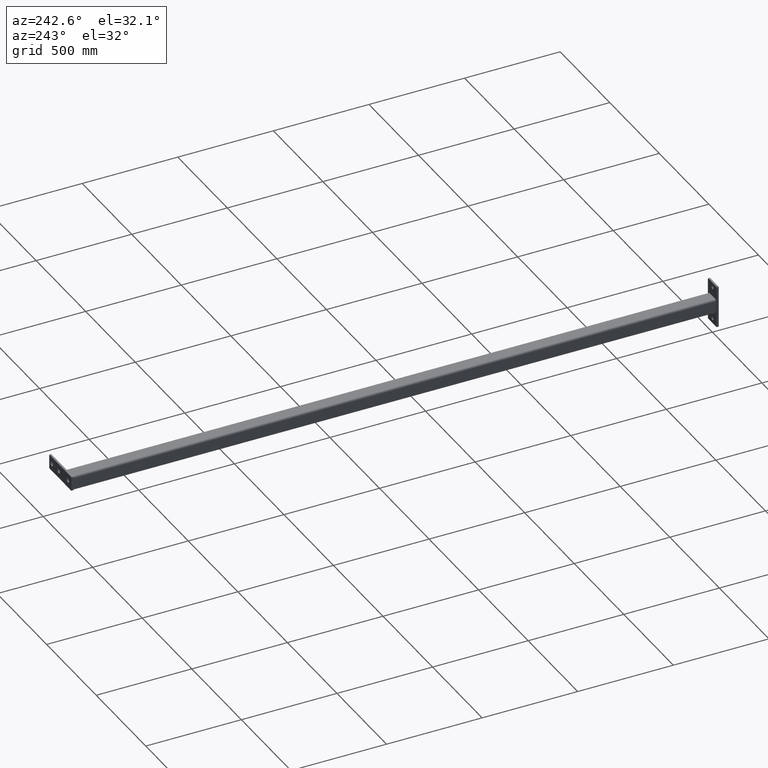
[diagram: clean part render]
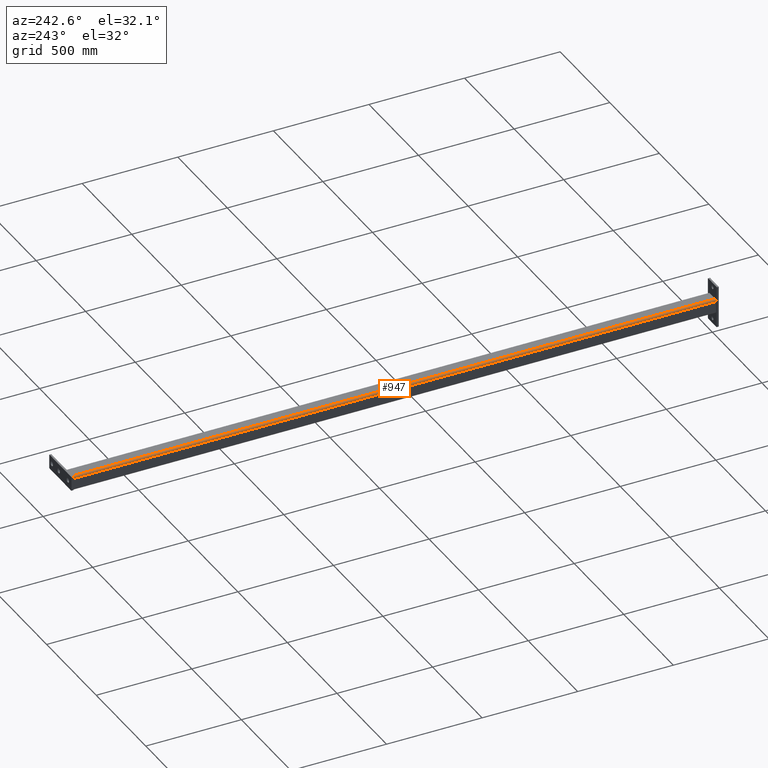
[diagram: same view with one face highlighted and labeled with its STEP entity id]
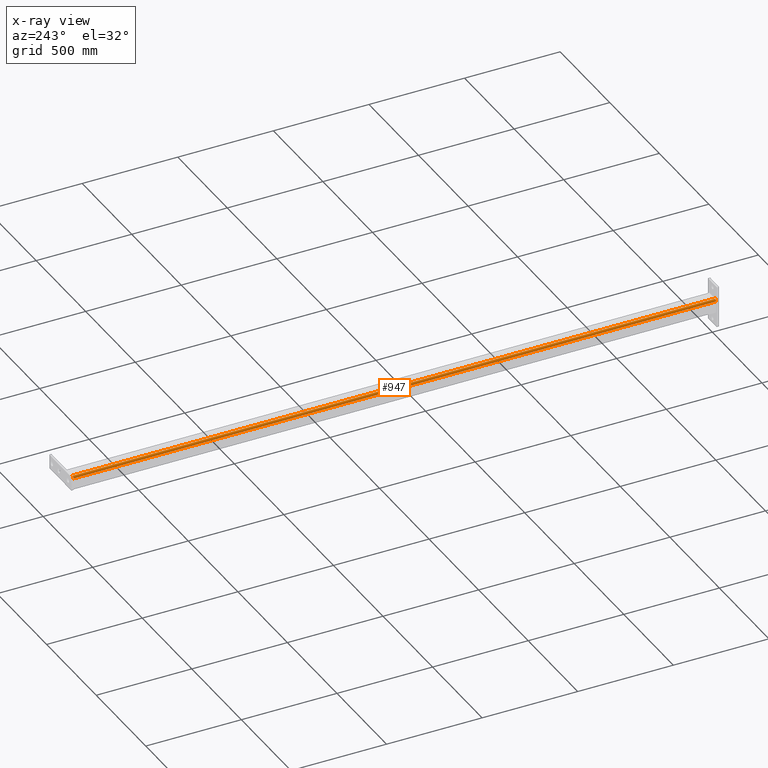
[diagram: x-ray of the same camera — body ghosted, the highlighted face saturated]
A machine part, auxiliary view. The second image highlights one B-rep face of the part: STEP entity #947.
The next image is the same camera in x-ray: the body ghosted, the highlighted face saturated — about 0% of this face is hidden behind the body in this view.
In plain terms, the highlighted cylindrical surface (edge-blend (fillet) strip) has radius 10 mm, axis along (0, 1, 0).
Its self-contained STEP definition (entity closure, byte-faithful):
#38 = VERTEX_POINT ( 'NONE', #2303 ) ;
#72 = CIRCLE ( 'NONE', #1617, 10.00000000000000533 ) ;
#115 = ORIENTED_EDGE ( 'NONE', *, *, #2141, .F. ) ;
#175 = VECTOR ( 'NONE', #994, 1000.000000000000000 ) ;
#179 = ORIENTED_EDGE ( 'NONE', *, *, #2188, .F. ) ;
#341 = CARTESIAN_POINT ( 'NONE',  ( 1680.500000000000000, -27.49999999999937117, -37.50000000000012079 ) ) ;
#529 = CARTESIAN_POINT ( 'NONE',  ( 1680.500000000000000, -27.49999999999937828, -27.50000000000011369 ) ) ;
#553 = DIRECTION ( 'NONE',  ( 0.000000000000000000, 1.000000000000000000, 0.000000000000000000 ) ) ;
#712 = EDGE_LOOP ( 'NONE', ( #2133, #115, #179, #1821 ) ) ;
#744 = DIRECTION ( 'NONE',  ( -1.000000000000000000, -3.061616997868382648E-16, 0.000000000000000000 ) ) ;
#912 = AXIS2_PLACEMENT_3D ( 'NONE', #939, #1307, #553 ) ;
#926 = CYLINDRICAL_SURFACE ( 'NONE', #2160, 10.00000000000000533 ) ;
#929 = DIRECTION ( 'NONE',  ( 1.000000000000000000, 3.061616997868382648E-16, -0.000000000000000000 ) ) ;
#939 = CARTESIAN_POINT ( 'NONE',  ( -1680.500000000000000, -27.50000000000040856, -27.50000000000011369 ) ) ;
#947 = ADVANCED_FACE ( 'NONE', ( #948 ), #926, .T. ) ;
#948 = FACE_OUTER_BOUND ( 'NONE', #712, .T. ) ;
#982 = LINE ( 'NONE', #1174, #175 ) ;
#994 = DIRECTION ( 'NONE',  ( 1.000000000000000000, 3.061616997868382648E-16, -0.000000000000000000 ) ) ;
#1083 = EDGE_CURVE ( 'NONE', #1796, #1755, #982, .T. ) ;
#1093 = VERTEX_POINT ( 'NONE', #2254 ) ;
#1121 = CARTESIAN_POINT ( 'NONE',  ( -1680.500000000000000, -27.50000000000040856, -27.50000000000011369 ) ) ;
#1174 = CARTESIAN_POINT ( 'NONE',  ( -1680.500000000000000, -27.50000000000040146, -37.50000000000012079 ) ) ;
#1307 = DIRECTION ( 'NONE',  ( -1.000000000000000000, -3.061616997868382648E-16, 0.000000000000000000 ) ) ;
#1368 = VECTOR ( 'NONE', #929, 1000.000000000000000 ) ;
#1466 = DIRECTION ( 'NONE',  ( 1.000000000000000000, 3.061616997868382648E-16, -0.000000000000000000 ) ) ;
#1617 = AXIS2_PLACEMENT_3D ( 'NONE', #529, #744, #2029 ) ;
#1755 = VERTEX_POINT ( 'NONE', #341 ) ;
#1796 = VERTEX_POINT ( 'NONE', #2184 ) ;
#1805 = CARTESIAN_POINT ( 'NONE',  ( -1680.500000000000000, -37.50000000000040501, -27.50000000000011724 ) ) ;
#1821 = ORIENTED_EDGE ( 'NONE', *, *, #1083, .T. ) ;
#1851 = DIRECTION ( 'NONE',  ( 0.000000000000000000, 1.000000000000000000, 0.000000000000000000 ) ) ;
#1928 = CIRCLE ( 'NONE', #912, 10.00000000000000533 ) ;
#2029 = DIRECTION ( 'NONE',  ( 0.000000000000000000, 1.000000000000000000, 0.000000000000000000 ) ) ;
#2133 = ORIENTED_EDGE ( 'NONE', *, *, #2269, .T. ) ;
#2141 = EDGE_CURVE ( 'NONE', #38, #1093, #2209, .T. ) ;
#2160 = AXIS2_PLACEMENT_3D ( 'NONE', #1121, #1466, #1851 ) ;
#2184 = CARTESIAN_POINT ( 'NONE',  ( -1680.500000000000000, -27.50000000000040146, -37.50000000000012079 ) ) ;
#2188 = EDGE_CURVE ( 'NONE', #1796, #38, #1928, .T. ) ;
#2209 = LINE ( 'NONE', #1805, #1368 ) ;
#2254 = CARTESIAN_POINT ( 'NONE',  ( 1680.500000000000000, -37.49999999999938183, -27.50000000000011724 ) ) ;
#2269 = EDGE_CURVE ( 'NONE', #1755, #1093, #72, .T. ) ;
#2303 = CARTESIAN_POINT ( 'NONE',  ( -1680.500000000000000, -37.50000000000040501, -27.50000000000011724 ) ) ;